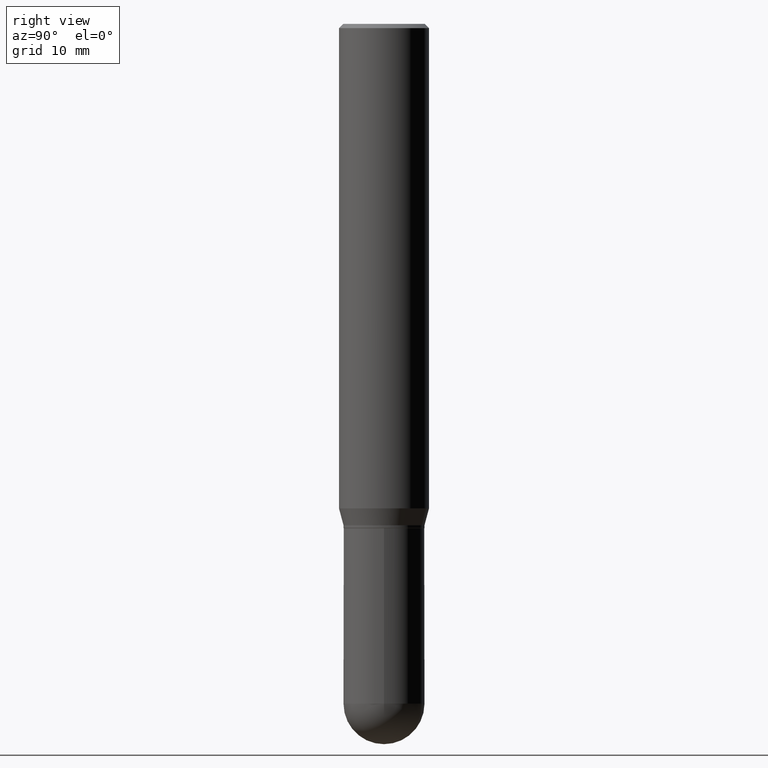
[diagram: clean part render]
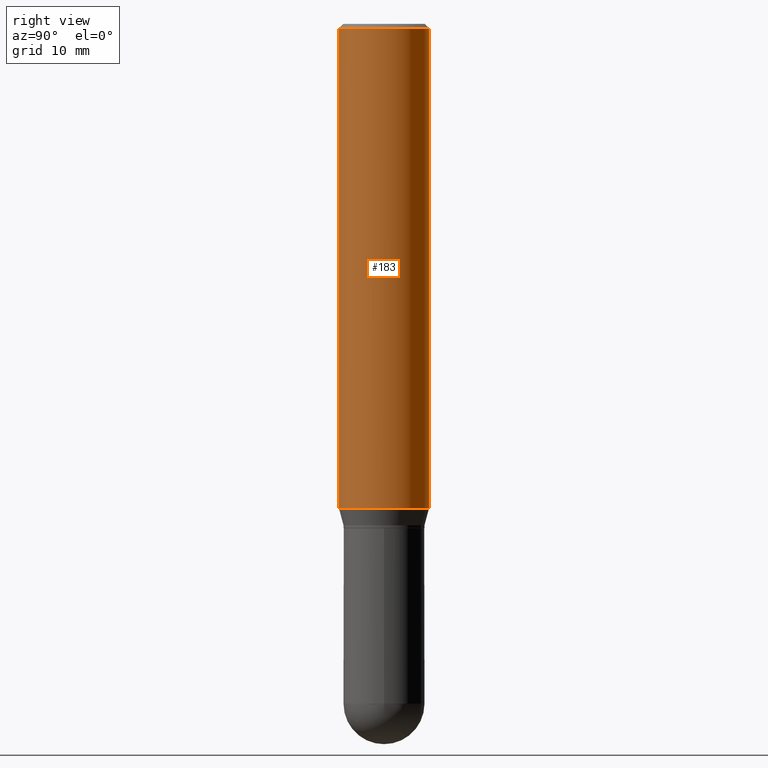
[diagram: same view with one face highlighted and labeled with its STEP entity id]
A machine part, right view. The second image highlights one B-rep face of the part: STEP entity #183.
In plain terms, the highlighted cylindrical surface (partial cylindrical patch) has radius 3.9688 mm, axis along (-0, 0, 1).
Its self-contained STEP definition (entity closure, byte-faithful):
#1 = DIRECTION ( 'NONE',  ( -2.445560966219159716E-29, 3.491349360429001039E-15, 1.000000000000000000 ) ) ;
#2 = EDGE_LOOP ( 'NONE', ( #191, #337, #14, #367 ) ) ;
#7 = EDGE_CURVE ( 'NONE', #62, #73, #176, .T. ) ;
#14 = ORIENTED_EDGE ( 'NONE', *, *, #162, .F. ) ;
#36 = DIRECTION ( 'NONE',  ( -2.445560966219159716E-29, 3.491349360429001039E-15, 1.000000000000000000 ) ) ;
#55 = AXIS2_PLACEMENT_3D ( 'NONE', #197, #36, #347 ) ;
#62 = VERTEX_POINT ( 'NONE', #218 ) ;
#73 = VERTEX_POINT ( 'NONE', #215 ) ;
#86 = FACE_OUTER_BOUND ( 'NONE', #2, .T. ) ;
#124 = CIRCLE ( 'NONE', #501, 0.1562500000000000000 ) ;
#126 = DIRECTION ( 'NONE',  ( -2.445560966219159716E-29, 3.491349360429001039E-15, 1.000000000000000000 ) ) ;
#151 = DIRECTION ( 'NONE',  ( -2.445560966219159996E-29, 3.491349360429000645E-15, 1.000000000000000000 ) ) ;
#162 = EDGE_CURVE ( 'NONE', #73, #339, #124, .T. ) ;
#173 = CIRCLE ( 'NONE', #461, 0.1562500000000000000 ) ;
#176 = LINE ( 'NONE', #451, #437 ) ;
#183 = ADVANCED_FACE ( 'NONE', ( #86 ), #358, .T. ) ;
#191 = ORIENTED_EDGE ( 'NONE', *, *, #478, .T. ) ;
#194 = DIRECTION ( 'NONE',  ( -6.982962677686265133E-15, -1.000000000000000000, 3.496765431890256920E-15 ) ) ;
#197 = CARTESIAN_POINT ( 'NONE',  ( 0.000000000000000000, 0.000000000000000000, 0.000000000000000000 ) ) ;
#202 = CARTESIAN_POINT ( 'NONE',  ( 3.668341449328747176E-31, -5.237024040643512307E-17, -0.01500000000000003067 ) ) ;
#215 = CARTESIAN_POINT ( 'NONE',  ( -1.091087918388478779E-15, -0.1562500000000000833, -0.01499999999999948423 ) ) ;
#218 = CARTESIAN_POINT ( 'NONE',  ( -1.091087918388437956E-15, -0.1562500000000058842, -1.681593404861546404 ) ) ;
#270 = DIRECTION ( 'NONE',  ( -6.982962677686265133E-15, -1.000000000000000000, 3.496765431890256920E-15 ) ) ;
#337 = ORIENTED_EDGE ( 'NONE', *, *, #423, .T. ) ;
#339 = VERTEX_POINT ( 'NONE', #499 ) ;
#347 = DIRECTION ( 'NONE',  ( -6.982962677686265133E-15, -1.000000000000000000, 3.491349360429001039E-15 ) ) ;
#358 = CYLINDRICAL_SURFACE ( 'NONE', #55, 0.1562500000000000000 ) ;
#367 = ORIENTED_EDGE ( 'NONE', *, *, #7, .F. ) ;
#381 = VERTEX_POINT ( 'NONE', #385 ) ;
#385 = CARTESIAN_POINT ( 'NONE',  ( 1.110223024625197561E-15, 0.1562499999999941436, -1.681593404861547514 ) ) ;
#409 = DIRECTION ( 'NONE',  ( -2.445560966219159996E-29, 3.491349360429000645E-15, 1.000000000000000000 ) ) ;
#420 = VECTOR ( 'NONE', #151, 39.37007874015748143 ) ;
#423 = EDGE_CURVE ( 'NONE', #381, #339, #511, .T. ) ;
#437 = VECTOR ( 'NONE', #409, 39.37007874015748143 ) ;
#451 = CARTESIAN_POINT ( 'NONE',  ( -1.091087918388478976E-15, -0.1562500000000000000, 5.455233375670314124E-16 ) ) ;
#461 = AXIS2_PLACEMENT_3D ( 'NONE', #475, #1, #194 ) ;
#463 = CARTESIAN_POINT ( 'NONE',  ( 1.110223024625156343E-15, 0.1562500000000000000, -5.455233375670314124E-16 ) ) ;
#475 = CARTESIAN_POINT ( 'NONE',  ( 4.112439191980971805E-29, -5.871030058564987327E-15, -1.681593404861546848 ) ) ;
#478 = EDGE_CURVE ( 'NONE', #62, #381, #173, .T. ) ;
#499 = CARTESIAN_POINT ( 'NONE',  ( 1.110223024625197561E-15, 0.1562499999999999445, -0.01500000000000057711 ) ) ;
#501 = AXIS2_PLACEMENT_3D ( 'NONE', #202, #126, #270 ) ;
#511 = LINE ( 'NONE', #463, #420 ) ;